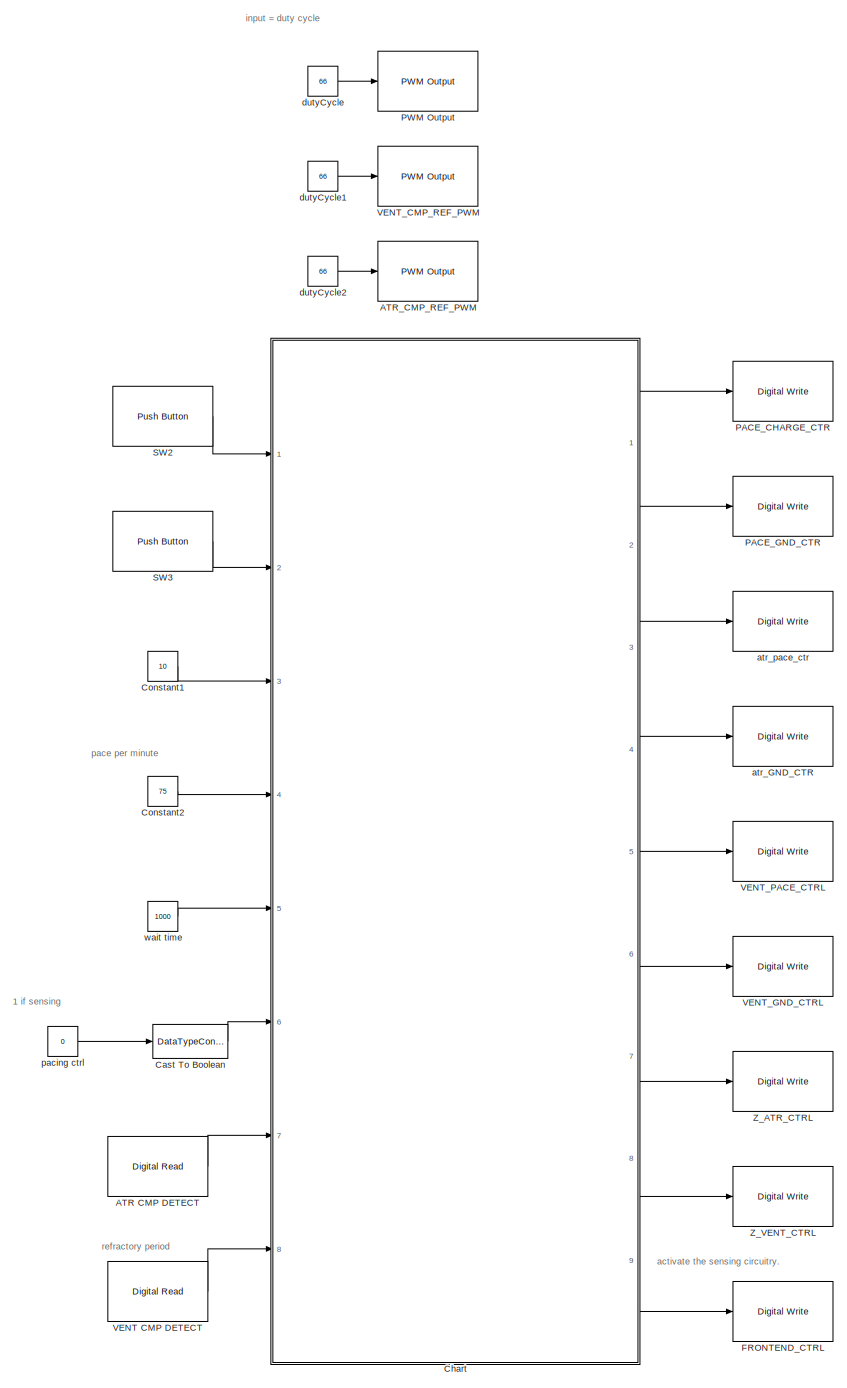
[diagram: root canvas - part 1/3, center side, full height]
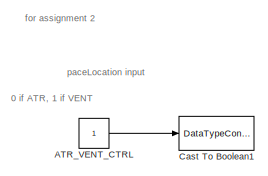
[diagram: root canvas - part 2/3, middle left region]
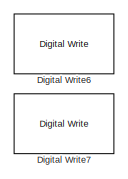
[diagram: root canvas - part 3/3, bottom right region]
MODEL slx_bbcf4551cbd4
KIND model
CONFIG AbsTol = auto
CONFIG EnableMultiTasking = on
CONFIG FixedStep = 1e-3
CONFIG MaxStep = auto
CONFIG MinStep = auto
CONFIG RelTol = 1e-3
CONFIG SampleTimeConstraint = Unconstrained
CONFIG Solver = FixedStepAuto
CONFIG SolverName = FixedStepAuto
CONFIG StartTime = 0.0
CONFIG StopTime = 10.0
BLOCK [Reference] ATR CMP DETECT  REF=frdmk64flib/Digital Read
  Ports = [0, 1]
  SourceBlock = frdmk64flib/Digital Read
  SourceProductBaseCode = EC_FRDM_K64F
  SourceType = freedomk64f.DigitalRead
BLOCK [Reference] ATR_CMP_REF_PWM  REF=frdmk64flib/PWM Output
  Ports = [1]
  SourceBlock = frdmk64flib/PWM Output
  SourceProductBaseCode = EC_FRDM_K64F
  SourceType = freedomk64f.PWMOutput
BLOCK [Constant] ATR_VENT_CTRL
  Commented = on
BLOCK [DataTypeConversion] Cast To Boolean
  OutDataTypeStr = boolean
  RndMeth = Floor
  SaturateOnIntegerOverflow = off
BLOCK [DataTypeConversion] Cast To Boolean1
  Commented = on
  OutDataTypeStr = boolean
  RndMeth = Floor
  SaturateOnIntegerOverflow = off
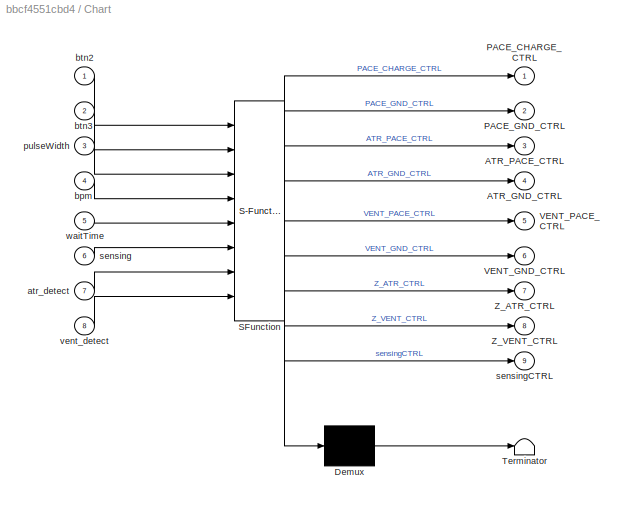
BLOCK [SubSystem] Chart
  ErrorFcn = Stateflow.Translate.translate
  PermitHierarchicalResolution = ExplicitOnly
  Ports = [8, 9]
  RequestExecContextInheritance = off
  SFBlockType = Chart
  TreatAsAtomicUnit = on
BLOCK [Demux] Chart/ Demux 
  Outputs = 1
  Ports = [1, 1]
BLOCK [S-Function] Chart/ SFunction 
  EnableBusSupport = on
  FunctionName = sf_sfun
  PortCounts = [8 10]
  Ports = [8, 10]
  SFcnIsStateOwnerBlock = off
  SFunctionDeploymentMode = off
  Tag = Stateflow S-Function 1
BLOCK [Terminator] Chart/ Terminator 
BLOCK [Outport] Chart/ATR_GND_CTRL
  Port = 4
BLOCK [Outport] Chart/ATR_PACE_CTRL
  Port = 3
BLOCK [Outport] Chart/PACE_CHARGE_CTRL
BLOCK [Outport] Chart/PACE_GND_CTRL
  Port = 2
BLOCK [Outport] Chart/VENT_GND_CTRL
  Port = 6
BLOCK [Outport] Chart/VENT_PACE_CTRL
  Port = 5
BLOCK [Outport] Chart/Z_ATR_CTRL
  Port = 7
BLOCK [Outport] Chart/Z_VENT_CTRL
  Port = 8
BLOCK [Inport] Chart/atr_detect
  Port = 7
BLOCK [Inport] Chart/bpm
  Port = 4
BLOCK [Inport] Chart/btn2
BLOCK [Inport] Chart/btn3
  Port = 2
BLOCK [Inport] Chart/pulseWidth
  Port = 3
BLOCK [Inport] Chart/sensing
  Port = 6
BLOCK [Outport] Chart/sensingCTRL
  Port = 9
BLOCK [Inport] Chart/vent_detect
  Port = 8
BLOCK [Inport] Chart/waitTime
  Port = 5
BLOCK [Constant] Constant1
  Value = 10
BLOCK [Constant] Constant2
  Value = 75
BLOCK [Reference] Digital Write6  REF=frdmk64flib/Digital Write
  Ports = [1]
  SourceBlock = frdmk64flib/Digital Write
  SourceProductBaseCode = EC_FRDM_K64F
  SourceType = freedomk64f.DigitalWrite
BLOCK [Reference] Digital Write7  REF=frdmk64flib/Digital Write
  Ports = [1]
  SourceBlock = frdmk64flib/Digital Write
  SourceProductBaseCode = EC_FRDM_K64F
  SourceType = freedomk64f.DigitalWrite
BLOCK [Reference] FRONTEND_CTRL  REF=frdmk64flib/Digital Write
  Ports = [1]
  SourceBlock = frdmk64flib/Digital Write
  SourceProductBaseCode = EC_FRDM_K64F
  SourceType = freedomk64f.DigitalWrite
BLOCK [Reference] PACE_CHARGE_CTR  REF=frdmk64flib/Digital Write
  Ports = [1]
  SourceBlock = frdmk64flib/Digital Write
  SourceProductBaseCode = EC_FRDM_K64F
  SourceType = freedomk64f.DigitalWrite
BLOCK [Reference] PACE_GND_CTR  REF=frdmk64flib/Digital Write
  Ports = [1]
  SourceBlock = frdmk64flib/Digital Write
  SourceProductBaseCode = EC_FRDM_K64F
  SourceType = freedomk64f.DigitalWrite
BLOCK [Reference] PWM Output  REF=frdmk64flib/PWM Output
  Ports = [1]
  SourceBlock = frdmk64flib/PWM Output
  SourceProductBaseCode = EC_FRDM_K64F
  SourceType = freedomk64f.PWMOutput
BLOCK [Reference] SW2  REF=frdmk64flib/Push Button
  Ports = [0, 1]
  SourceBlock = frdmk64flib/Push Button
  SourceProductBaseCode = EC_FRDM_K64F
  SourceType = freedomk64f.PushButton
BLOCK [Reference] SW3  REF=frdmk64flib/Push Button
  Ports = [0, 1]
  SourceBlock = frdmk64flib/Push Button
  SourceProductBaseCode = EC_FRDM_K64F
  SourceType = freedomk64f.PushButton
BLOCK [Reference] VENT CMP DETECT  REF=frdmk64flib/Digital Read
  Ports = [0, 1]
  SourceBlock = frdmk64flib/Digital Read
  SourceProductBaseCode = EC_FRDM_K64F
  SourceType = freedomk64f.DigitalRead
BLOCK [Reference] VENT_CMP_REF_PWM  REF=frdmk64flib/PWM Output
  Ports = [1]
  SourceBlock = frdmk64flib/PWM Output
  SourceProductBaseCode = EC_FRDM_K64F
  SourceType = freedomk64f.PWMOutput
BLOCK [Reference] VENT_GND_CTRL  REF=frdmk64flib/Digital Write
  Ports = [1]
  SourceBlock = frdmk64flib/Digital Write
  SourceProductBaseCode = EC_FRDM_K64F
  SourceType = freedomk64f.DigitalWrite
BLOCK [Reference] VENT_PACE_CTRL  REF=frdmk64flib/Digital Write
  Ports = [1]
  SourceBlock = frdmk64flib/Digital Write
  SourceProductBaseCode = EC_FRDM_K64F
  SourceType = freedomk64f.DigitalWrite
BLOCK [Reference] Z_ATR_CTRL  REF=frdmk64flib/Digital Write
  Ports = [1]
  SourceBlock = frdmk64flib/Digital Write
  SourceProductBaseCode = EC_FRDM_K64F
  SourceType = freedomk64f.DigitalWrite
BLOCK [Reference] Z_VENT_CTRL  REF=frdmk64flib/Digital Write
  Ports = [1]
  SourceBlock = frdmk64flib/Digital Write
  SourceProductBaseCode = EC_FRDM_K64F
  SourceType = freedomk64f.DigitalWrite
BLOCK [Reference] atr_GND_CTR  REF=frdmk64flib/Digital Write
  Ports = [1]
  SourceBlock = frdmk64flib/Digital Write
  SourceProductBaseCode = EC_FRDM_K64F
  SourceType = freedomk64f.DigitalWrite
BLOCK [Reference] atr_pace_ctr  REF=frdmk64flib/Digital Write
  Ports = [1]
  SourceBlock = frdmk64flib/Digital Write
  SourceProductBaseCode = EC_FRDM_K64F
  SourceType = freedomk64f.DigitalWrite
BLOCK [Constant] dutyCycle
  Value = 66
BLOCK [Constant] dutyCycle1
  Value = 66
BLOCK [Constant] dutyCycle2
  Value = 66
BLOCK [Constant] pacing ctrl
  Value = 0
BLOCK [Constant] wait time
  Value = 1000
ANNOTATION (root): 0 if ATR, 1 if VENT
ANNOTATION (root): 1 if sensing
ANNOTATION (root): activate the sensing circuitry.
ANNOTATION (root): for assignment 2
ANNOTATION (root): input = duty cycle
ANNOTATION (root): pace per minute
ANNOTATION (root): paceLocation input
ANNOTATION (root): refractory period
LINE ATR CMP DETECT:1 -> Chart:7
LINE ATR_VENT_CTRL:1 -> Cast To Boolean1:1
LINE Cast To Boolean:1 -> Chart:6
LINE Chart:1 -> PACE_CHARGE_CTR:1
LINE Chart:2 -> PACE_GND_CTR:1
LINE Chart:3 -> atr_pace_ctr:1
LINE Chart:4 -> atr_GND_CTR:1
LINE Chart:5 -> VENT_PACE_CTRL:1
LINE Chart:6 -> VENT_GND_CTRL:1
LINE Chart:7 -> Z_ATR_CTRL:1
LINE Chart:8 -> Z_VENT_CTRL:1
LINE Chart:9 -> FRONTEND_CTRL:1
LINE Constant1:1 -> Chart:3
LINE Constant2:1 -> Chart:4
LINE SW2:1 -> Chart:1
LINE SW3:1 -> Chart:2
LINE VENT CMP DETECT:1 -> Chart:8
LINE dutyCycle1:1 -> VENT_CMP_REF_PWM:1
LINE dutyCycle2:1 -> ATR_CMP_REF_PWM:1
LINE dutyCycle:1 -> PWM Output:1
LINE pacing ctrl:1 -> Cast To Boolean:1
LINE wait time:1 -> Chart:5
CHART Chart states=14 transitions=19
  STATE_LABEL '<!DOCTYPE HTML PUBLIC "-//W3C//DTD HTML 4.0//EN" "http://www.w3.org/TR/REC-html40/strict.dtd">\n<html><head><meta name="qrichtext" content="1" /><style type="text/css">\np, li { white-space: pre-wrap; }\n</style></head><body align="left" style=" font-family:\'Helvetica\'; font-size:12px; font-weight:400; font-style:normal;">\n<p align="left" style=" margin-top:0px; margin-bottom:0px; margin-left:0px; ma...<+117ch>'
  STATE_LABEL 'SENSING_VENT_TRUE \nentry:\nsensingCTRL = true;'
  STATE_LABEL 'VENT_CHARGING_AND_DISCHARGE \nentry:\nsecPerBeat = 60/bpm;\nsensingCTRL = sensing;\nATR_PACE_CTRL = false;\nVENT_PACE_CTRL = false;\nPACE_CHARGE_CTRL = true;\nPACE_GND_CTRL = true; % 10 in shield expl. doc. diagram\nZ_VENT_CTRL = false;\nZ_ATR_CTRL = false\nVENT_GND_CTRL = true; % 7\nATR_GND_CTRL = false; % 7\n'
  STATE_LABEL 'VENT_PACING\nentry:\nPACE_GND_CTRL = true; %10\nVENT_PACE_CTRL = true;\nVENT_GND_CTRL = false; %7\nZ_VENT_CTRL = false;\nZ_ATR_CTRL = false;\nATR_GND_CTRL = false; %7\nATR_PACE_CTRL = false; % 6\nsensingCTRL = sensing;\n'
  STATE_LABEL '<!DOCTYPE HTML PUBLIC "-//W3C//DTD HTML 4.0//EN" "http://www.w3.org/TR/REC-html40/strict.dtd">\n<html><head><meta name="qrichtext" content="1" /><style type="text/css">\np, li { white-space: pre-wrap; }\n</style></head><body align="left" style=" font-family:\'Helvetica\'; font-size:12px; font-weight:400; font-style:normal;">\n<p align="left" style=" margin-top:0px; margin-bottom:0px; margin-left:0px; ma...<+121ch>'
  STATE_LABEL 'changeLocation1\nentry:\nbtn2 == false;'
  STATE_LABEL 'changeLocation\nentry:\nbtn2 == false;'
  STATE_LABEL 'vent'
  STATE_LABEL 'atr'
  STATE_LABEL 'ATR_CHARGING_AND_DISCHARGE\nentry:\nsecPerBeat = 60/bpm;\nsensingCTRL = sensing;\nATR_PACE_CTRL = false;\nVENT_PACE_CTRL = false;\nPACE_CHARGE_CTRL = true;\nPACE_GND_CTRL = true; % 10\nZ_VENT_CTRL = false;\nZ_ATR_CTRL = false;\nVENT_GND_CTRL = false; % 7\nATR_GND_CTRL = true; % 7'
  STATE_LABEL 'ATR_PACING\nentry:\nPACE_GND_CTRL = true; %10\nVENT_PACE_CTRL = false;\nVENT_GND_CTRL = false; %7\nZ_VENT_CTRL = false;\nZ_ATR_CTRL = false;\nATR_GND_CTRL = false; %7\nATR_PACE_CTRL = true; % 6\nsensingCTRL = sensing;'
  STATE_LABEL '<!DOCTYPE HTML PUBLIC "-//W3C//DTD HTML 4.0//EN" "http://www.w3.org/TR/REC-html40/strict.dtd">\n<html><head><meta name="qrichtext" content="1" /><style type="text/css">\np, li { white-space: pre-wrap; }\n</style></head><body align="left" style=" font-family:\'Helvetica\'; font-size:12px; font-weight:400; font-style:normal;">\n<p align="left" style=" margin-top:0px; margin-bottom:0px; margin-left:0px; ma...<+120ch>'
  STATE_LABEL 'SENSING_ATR_TRUE \nentry:\nsensingCTRL = true;'
  STATE_LABEL '<!DOCTYPE HTML PUBLIC "-//W3C//DTD HTML 4.0//EN" "http://www.w3.org/TR/REC-html40/strict.dtd">\n<html><head><meta name="qrichtext" content="1" /><style type="text/css">\np, li { white-space: pre-wrap; }\n</style></head><body align="left" style=" font-family:\'Helvetica\'; font-size:12px; font-weight:400; font-style:normal;">\n<p align="left" style=" margin-top:0px; margin-bottom:0px; margin-left:0px; ma...<+117ch>'
CHART  states=0 transitions=0
